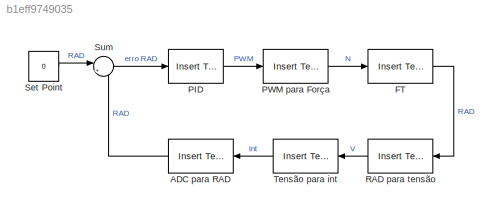
MODEL slx_b1eff9749035
KIND model
CONFIG AbsTol = auto
CONFIG EnableMultiTasking = off
CONFIG FixedStep = auto
CONFIG MaxStep = auto
CONFIG MinStep = auto
CONFIG RelTol = 1e-3
CONFIG SampleTimeConstraint = Unconstrained
CONFIG SolverName = VariableStepAuto
CONFIG StartTime = 0.0
CONFIG StopTime = 10.0
BLOCK [Reference] ADC para RAD  REF=visiontextngfix/Insert Text
  Ports = [1, 1]
  SourceBlock = visiontextngfix/Insert Text
  SourceProductBaseCode = VP
  SourceType = Insert Text
BLOCK [Reference] FT  REF=visiontextngfix/Insert Text
  Ports = [1, 1]
  SourceBlock = visiontextngfix/Insert Text
  SourceProductBaseCode = VP
  SourceType = Insert Text
BLOCK [Reference] PID  REF=visiontextngfix/Insert Text
  Ports = [1, 1]
  SourceBlock = visiontextngfix/Insert Text
  SourceProductBaseCode = VP
  SourceType = Insert Text
BLOCK [Reference] PWM para Força  REF=visiontextngfix/Insert Text
  Ports = [1, 1]
  SourceBlock = visiontextngfix/Insert Text
  SourceProductBaseCode = VP
  SourceType = Insert Text
BLOCK [Reference] RAD para tensão  REF=visiontextngfix/Insert Text
  Ports = [1, 1]
  SourceBlock = visiontextngfix/Insert Text
  SourceProductBaseCode = VP
  SourceType = Insert Text
BLOCK [Constant] Set Point
  Value = 0
BLOCK [Sum] Sum
  Inputs = |+-
  Ports = [2, 1]
BLOCK [Reference] Tensão para int  REF=visiontextngfix/Insert Text
  Ports = [1, 1]
  SourceBlock = visiontextngfix/Insert Text
  SourceProductBaseCode = VP
  SourceType = Insert Text
LINE ADC para RAD:1 -> Sum:2
LINE FT:1 -> RAD para tensão:1
LINE PID:1 -> PWM para Força:1
LINE PWM para Força:1 -> FT:1
LINE RAD para tensão:1 -> Tensão para int:1
LINE Set Point:1 -> Sum:1
LINE Sum:1 -> PID:1
LINE Tensão para int:1 -> ADC para RAD:1
